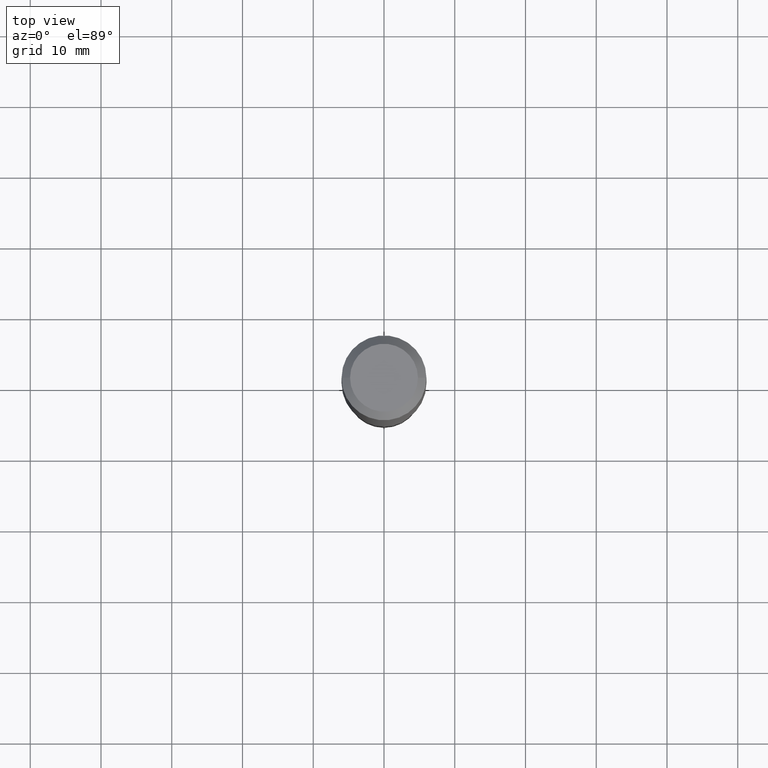
[diagram: clean part render]
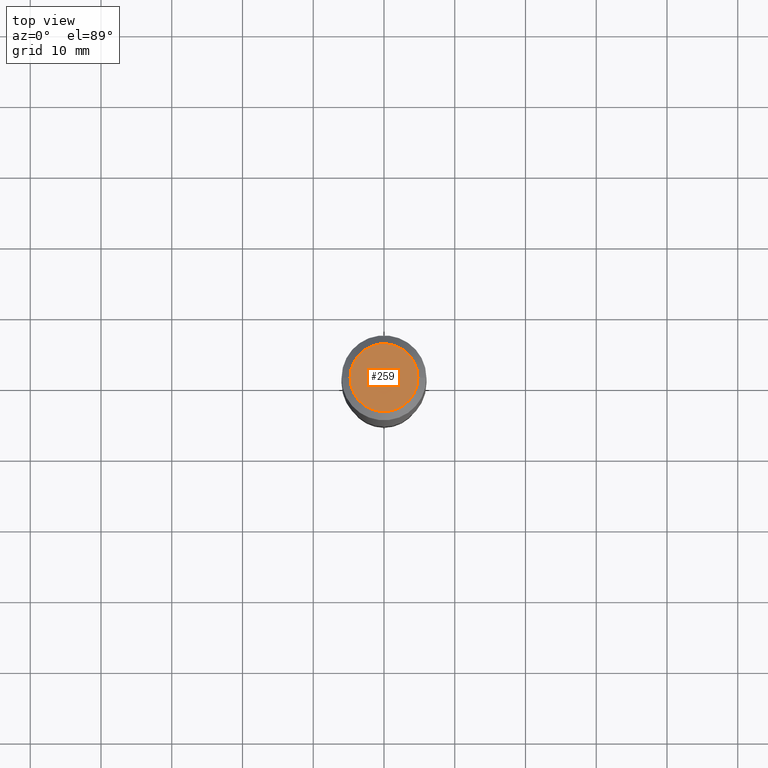
[diagram: same view with one face highlighted and labeled with its STEP entity id]
A machine part, top view. The second image highlights one B-rep face of the part: STEP entity #259.
In plain terms, the highlighted planar face has unit normal (0, -0, -1).
Its self-contained STEP definition (entity closure, byte-faithful):
#5 = DIRECTION ( 'NONE',  ( -1.000000000000000000, 6.982962677686265922E-15, -4.876176775795935793E-29 ) ) ;
#28 = EDGE_CURVE ( 'NONE', #286, #47, #483, .T. ) ;
#34 = FACE_OUTER_BOUND ( 'NONE', #304, .T. ) ;
#47 = VERTEX_POINT ( 'NONE', #223 ) ;
#72 = CARTESIAN_POINT ( 'NONE',  ( -4.713871149261273121E-47, 6.730158695841826722E-33, 1.927594061857931128E-18 ) ) ;
#84 = CARTESIAN_POINT ( 'NONE',  ( -9.427742298522546243E-47, 1.346031739168365344E-32, 3.855188123715862256E-18 ) ) ;
#90 = AXIS2_PLACEMENT_3D ( 'NONE', #244, #291, #96 ) ;
#96 = DIRECTION ( 'NONE',  ( 1.000000000000000000, -6.982962677686266711E-15, 4.876185090822587894E-29 ) ) ;
#113 = CARTESIAN_POINT ( 'NONE',  ( -0.1889600000000000168, 1.401969416799070942E-15, 3.855188123706346622E-18 ) ) ;
#119 = DIRECTION ( 'NONE',  ( 1.000000000000000000, -6.982962677686266711E-15, 4.876185090822587894E-29 ) ) ;
#175 = EDGE_CURVE ( 'NONE', #47, #286, #361, .T. ) ;
#207 = ORIENTED_EDGE ( 'NONE', *, *, #28, .T. ) ;
#219 = DIRECTION ( 'NONE',  ( 2.438088387897960049E-29, -3.491481338843145188E-15, -1.000000000000000000 ) ) ;
#223 = CARTESIAN_POINT ( 'NONE',  ( 0.1889600000000000168, -1.540873453589747738E-15, 3.855188123725863225E-18 ) ) ;
#226 = AXIS2_PLACEMENT_3D ( 'NONE', #72, #219, #5 ) ;
#230 = PLANE ( 'NONE',  #226 ) ;
#244 = CARTESIAN_POINT ( 'NONE',  ( -9.427742298522546243E-47, 1.346031739168365344E-32, 3.855188123715862256E-18 ) ) ;
#259 = ADVANCED_FACE ( 'NONE', ( #34 ), #230, .F. ) ;
#286 = VERTEX_POINT ( 'NONE', #113 ) ;
#291 = DIRECTION ( 'NONE',  ( -2.445468806185136597E-29, 3.491481338843145583E-15, 1.000000000000000000 ) ) ;
#304 = EDGE_LOOP ( 'NONE', ( #207, #481 ) ) ;
#317 = DIRECTION ( 'NONE',  ( -2.445468806185136597E-29, 3.491481338843145583E-15, 1.000000000000000000 ) ) ;
#361 = CIRCLE ( 'NONE', #90, 0.1889600000000000168 ) ;
#466 = AXIS2_PLACEMENT_3D ( 'NONE', #84, #317, #119 ) ;
#481 = ORIENTED_EDGE ( 'NONE', *, *, #175, .T. ) ;
#483 = CIRCLE ( 'NONE', #466, 0.1889600000000000168 ) ;